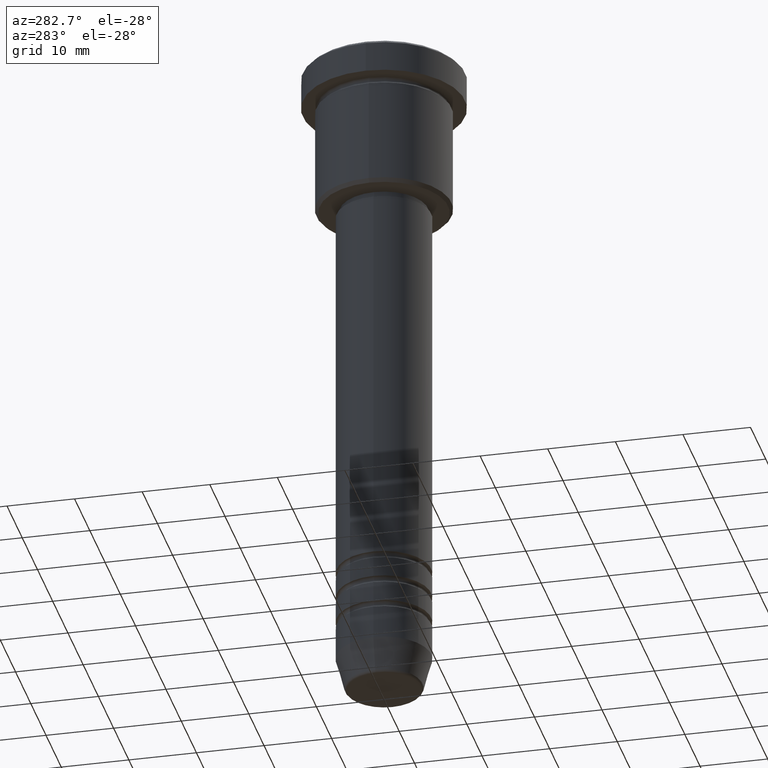
[diagram: clean part render]
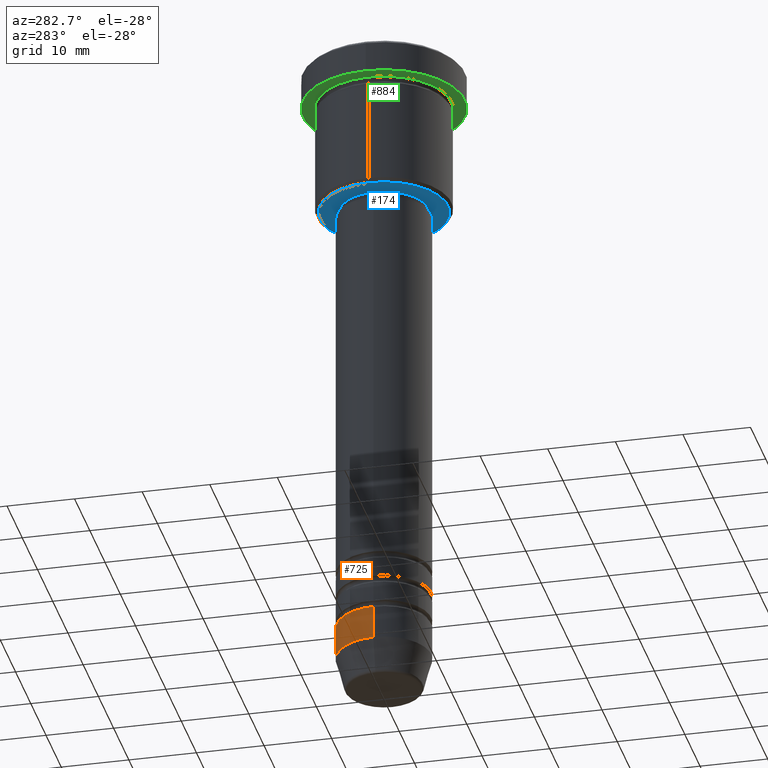
[diagram: same view with three faces highlighted in distinct colors, each labeled with its STEP entity id]
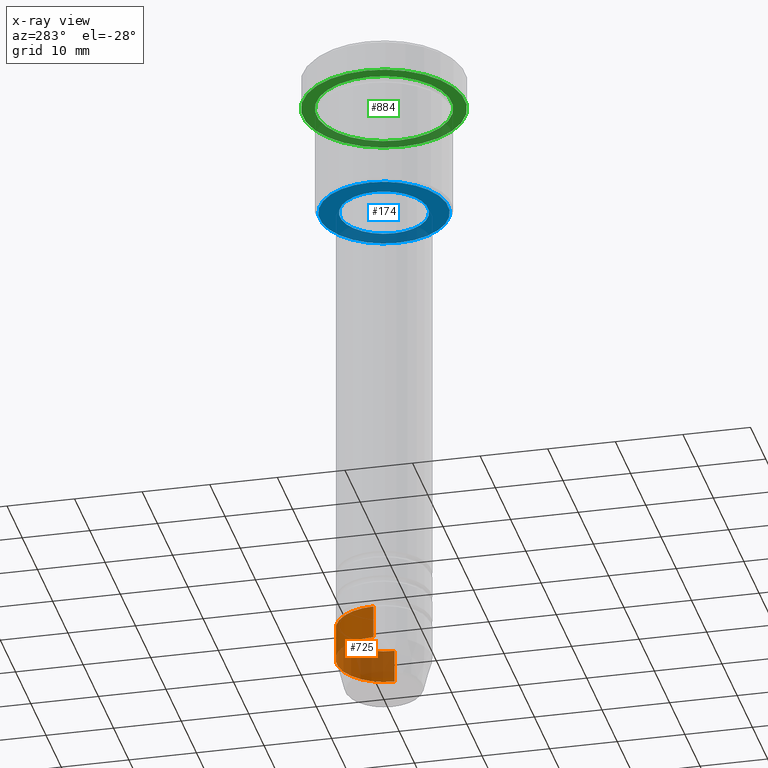
[diagram: x-ray of the same camera — body ghosted, the three highlighted faces saturated]
A machine part, auxiliary view with three faces highlighted in distinct colors.
The next image is the same camera in x-ray (body ghosted, the three faces saturated) — at least one of them is partly hidden behind the body in this view.
Their STEP definitions:

[orange] entity #725 — the highlighted cylindrical surface (partial cylindrical patch) has radius 7 mm, axis along (-0, -0, 1).
#5 = VERTEX_POINT ( 'NONE', #958 ) ;
#14 = CARTESIAN_POINT ( 'NONE',  ( 0.000000000000000000, 0.000000000000000000, -90.00000000000000000 ) ) ;
#29 = DIRECTION ( 'NONE',  ( -0.000000000000000000, -0.000000000000000000, 1.000000000000000000 ) ) ;
#79 = CARTESIAN_POINT ( 'NONE',  ( 7.000000000000000888, 0.000000000000000000, -95.00000000000000000 ) ) ;
#158 = AXIS2_PLACEMENT_3D ( 'NONE', #857, #29, #765 ) ;
#262 = CARTESIAN_POINT ( 'NONE',  ( -7.000000000000000888, 8.572527594031474176E-16, 0.000000000000000000 ) ) ;
#265 = EDGE_LOOP ( 'NONE', ( #851, #664, #712, #858 ) ) ;
#269 = CYLINDRICAL_SURFACE ( 'NONE', #503, 7.000000000000000888 ) ;
#317 = CARTESIAN_POINT ( 'NONE',  ( 7.000000000000000000, 0.000000000000000000, -90.00000000000000000 ) ) ;
#385 = EDGE_CURVE ( 'NONE', #781, #5, #735, .T. ) ;
#392 = EDGE_CURVE ( 'NONE', #737, #781, #1127, .T. ) ;
#417 = EDGE_CURVE ( 'NONE', #737, #720, #535, .T. ) ;
#459 = DIRECTION ( 'NONE',  ( -0.000000000000000000, -0.000000000000000000, 1.000000000000000000 ) ) ;
#478 = DIRECTION ( 'NONE',  ( 1.000000000000000000, 0.000000000000000000, 0.000000000000000000 ) ) ;
#503 = AXIS2_PLACEMENT_3D ( 'NONE', #1079, #459, #828 ) ;
#535 = CIRCLE ( 'NONE', #158, 7.000000000000000888 ) ;
#623 = CARTESIAN_POINT ( 'NONE',  ( -7.000000000000000888, 8.572527594031474176E-16, -95.00000000000000000 ) ) ;
#664 = ORIENTED_EDGE ( 'NONE', *, *, #713, .T. ) ;
#666 = CARTESIAN_POINT ( 'NONE',  ( 7.000000000000000888, 0.000000000000000000, 0.000000000000000000 ) ) ;
#680 = DIRECTION ( 'NONE',  ( -0.000000000000000000, -0.000000000000000000, 1.000000000000000000 ) ) ;
#712 = ORIENTED_EDGE ( 'NONE', *, *, #385, .F. ) ;
#713 = EDGE_CURVE ( 'NONE', #720, #5, #835, .T. ) ;
#720 = VERTEX_POINT ( 'NONE', #623 ) ;
#722 = FACE_OUTER_BOUND ( 'NONE', #265, .T. ) ;
#725 = ADVANCED_FACE ( 'NONE', ( #722 ), #269, .T. ) ;
#735 = CIRCLE ( 'NONE', #1051, 7.000000000000000000 ) ;
#737 = VERTEX_POINT ( 'NONE', #79 ) ;
#765 = DIRECTION ( 'NONE',  ( 1.000000000000000000, 0.000000000000000000, 0.000000000000000000 ) ) ;
#781 = VERTEX_POINT ( 'NONE', #317 ) ;
#828 = DIRECTION ( 'NONE',  ( 1.000000000000000000, 0.000000000000000000, 0.000000000000000000 ) ) ;
#831 = VECTOR ( 'NONE', #1178, 1000.000000000000000 ) ;
#835 = LINE ( 'NONE', #262, #831 ) ;
#851 = ORIENTED_EDGE ( 'NONE', *, *, #417, .T. ) ;
#857 = CARTESIAN_POINT ( 'NONE',  ( 0.000000000000000000, 0.000000000000000000, -95.00000000000000000 ) ) ;
#858 = ORIENTED_EDGE ( 'NONE', *, *, #392, .F. ) ;
#940 = DIRECTION ( 'NONE',  ( -0.000000000000000000, -0.000000000000000000, 1.000000000000000000 ) ) ;
#958 = CARTESIAN_POINT ( 'NONE',  ( -7.000000000000000000, 8.572527594031473190E-16, -90.00000000000000000 ) ) ;
#977 = VECTOR ( 'NONE', #680, 1000.000000000000000 ) ;
#1051 = AXIS2_PLACEMENT_3D ( 'NONE', #14, #940, #478 ) ;
#1079 = CARTESIAN_POINT ( 'NONE',  ( 0.000000000000000000, 0.000000000000000000, 0.000000000000000000 ) ) ;
#1127 = LINE ( 'NONE', #666, #977 ) ;
#1178 = DIRECTION ( 'NONE',  ( -0.000000000000000000, -0.000000000000000000, 1.000000000000000000 ) ) ;

[blue] entity #174 — the highlighted planar face has unit normal (0, 0, -1).
#20 = DIRECTION ( 'NONE',  ( 1.000000000000000000, 0.000000000000000000, 0.000000000000000000 ) ) ;
#87 = CARTESIAN_POINT ( 'NONE',  ( -9.499999999999994671, 1.194030629168669075E-15, -22.00000000000000000 ) ) ;
#95 = ORIENTED_EDGE ( 'NONE', *, *, #237, .T. ) ;
#135 = DIRECTION ( 'NONE',  ( -0.000000000000000000, -0.000000000000000000, 1.000000000000000000 ) ) ;
#148 = EDGE_LOOP ( 'NONE', ( #95, #985 ) ) ;
#156 = CIRCLE ( 'NONE', #945, 9.499999999999994671 ) ;
#167 = CARTESIAN_POINT ( 'NONE',  ( 0.000000000000000000, 0.000000000000000000, -22.00000000000000000 ) ) ;
#174 = ADVANCED_FACE ( 'NONE', ( #653, #812 ), #184, .T. ) ;
#178 = CIRCLE ( 'NONE', #655, 6.500000000000000000 ) ;
#184 = PLANE ( 'NONE',  #850 ) ;
#229 = VERTEX_POINT ( 'NONE', #87 ) ;
#237 = EDGE_CURVE ( 'NONE', #903, #229, #156, .T. ) ;
#246 = VERTEX_POINT ( 'NONE', #1101 ) ;
#251 = EDGE_CURVE ( 'NONE', #246, #1122, #178, .T. ) ;
#362 = ORIENTED_EDGE ( 'NONE', *, *, #251, .T. ) ;
#365 = DIRECTION ( 'NONE',  ( 0.000000000000000000, 0.000000000000000000, -1.000000000000000000 ) ) ;
#455 = DIRECTION ( 'NONE',  ( -0.000000000000000000, -0.000000000000000000, 1.000000000000000000 ) ) ;
#602 = AXIS2_PLACEMENT_3D ( 'NONE', #1118, #135, #20 ) ;
#645 = CARTESIAN_POINT ( 'NONE',  ( -6.500000000000000000, 7.960204194457795477E-16, -22.00000000000000000 ) ) ;
#653 = FACE_OUTER_BOUND ( 'NONE', #148, .T. ) ;
#655 = AXIS2_PLACEMENT_3D ( 'NONE', #921, #455, #1080 ) ;
#660 = CIRCLE ( 'NONE', #602, 6.500000000000000000 ) ;
#667 = EDGE_LOOP ( 'NONE', ( #362, #756 ) ) ;
#723 = DIRECTION ( 'NONE',  ( 0.000000000000000000, 0.000000000000000000, -1.000000000000000000 ) ) ;
#753 = EDGE_CURVE ( 'NONE', #1122, #246, #660, .T. ) ;
#756 = ORIENTED_EDGE ( 'NONE', *, *, #753, .T. ) ;
#812 = FACE_BOUND ( 'NONE', #667, .T. ) ;
#829 = CARTESIAN_POINT ( 'NONE',  ( 0.000000000000000000, 0.000000000000000000, -22.00000000000000000 ) ) ;
#834 = CIRCLE ( 'NONE', #1020, 9.499999999999994671 ) ;
#850 = AXIS2_PLACEMENT_3D ( 'NONE', #924, #723, #906 ) ;
#903 = VERTEX_POINT ( 'NONE', #1037 ) ;
#906 = DIRECTION ( 'NONE',  ( -1.000000000000000000, 0.000000000000000000, -0.000000000000000000 ) ) ;
#921 = CARTESIAN_POINT ( 'NONE',  ( 0.000000000000000000, 0.000000000000000000, -22.00000000000000000 ) ) ;
#924 = CARTESIAN_POINT ( 'NONE',  ( 0.000000000000000000, 9.999999999999998224, -22.00000000000000000 ) ) ;
#945 = AXIS2_PLACEMENT_3D ( 'NONE', #829, #365, #1174 ) ;
#985 = ORIENTED_EDGE ( 'NONE', *, *, #1128, .T. ) ;
#1020 = AXIS2_PLACEMENT_3D ( 'NONE', #167, #1177, #1078 ) ;
#1037 = CARTESIAN_POINT ( 'NONE',  ( 9.499999999999994671, 0.000000000000000000, -22.00000000000000000 ) ) ;
#1078 = DIRECTION ( 'NONE',  ( -1.000000000000000000, 0.000000000000000000, 0.000000000000000000 ) ) ;
#1080 = DIRECTION ( 'NONE',  ( 1.000000000000000000, 0.000000000000000000, 0.000000000000000000 ) ) ;
#1101 = CARTESIAN_POINT ( 'NONE',  ( 6.500000000000000000, 0.000000000000000000, -22.00000000000000000 ) ) ;
#1118 = CARTESIAN_POINT ( 'NONE',  ( 0.000000000000000000, 0.000000000000000000, -22.00000000000000000 ) ) ;
#1122 = VERTEX_POINT ( 'NONE', #645 ) ;
#1128 = EDGE_CURVE ( 'NONE', #229, #903, #834, .T. ) ;
#1174 = DIRECTION ( 'NONE',  ( -1.000000000000000000, 0.000000000000000000, 0.000000000000000000 ) ) ;
#1177 = DIRECTION ( 'NONE',  ( 0.000000000000000000, 0.000000000000000000, -1.000000000000000000 ) ) ;

[green] entity #884 — the highlighted planar face has unit normal (0, 0, -1).
#3 = AXIS2_PLACEMENT_3D ( 'NONE', #975, #968, #160 ) ;
#12 = ORIENTED_EDGE ( 'NONE', *, *, #749, .T. ) ;
#33 = DIRECTION ( 'NONE',  ( -1.000000000000000000, 0.000000000000000000, -0.000000000000000000 ) ) ;
#37 = FACE_OUTER_BOUND ( 'NONE', #217, .T. ) ;
#61 = VERTEX_POINT ( 'NONE', #137 ) ;
#126 = AXIS2_PLACEMENT_3D ( 'NONE', #449, #481, #751 ) ;
#137 = CARTESIAN_POINT ( 'NONE',  ( 10.00000000000000000, 1.224646799147353256E-15, -4.999999999999999112 ) ) ;
#160 = DIRECTION ( 'NONE',  ( 1.000000000000000000, 0.000000000000000000, 0.000000000000000000 ) ) ;
#180 = CIRCLE ( 'NONE', #678, 12.00000000000000000 ) ;
#181 = CARTESIAN_POINT ( 'NONE',  ( 0.000000000000000000, 0.000000000000000000, -5.000000000000000000 ) ) ;
#196 = EDGE_CURVE ( 'NONE', #570, #61, #201, .T. ) ;
#201 = CIRCLE ( 'NONE', #1164, 10.00000000000000000 ) ;
#217 = EDGE_LOOP ( 'NONE', ( #259, #745 ) ) ;
#259 = ORIENTED_EDGE ( 'NONE', *, *, #952, .F. ) ;
#281 = DIRECTION ( 'NONE',  ( -0.000000000000000000, -0.000000000000000000, 1.000000000000000000 ) ) ;
#302 = AXIS2_PLACEMENT_3D ( 'NONE', #395, #1030, #33 ) ;
#310 = VERTEX_POINT ( 'NONE', #1119 ) ;
#347 = CARTESIAN_POINT ( 'NONE',  ( -10.00000000000000000, 0.000000000000000000, -4.999999999999999112 ) ) ;
#390 = FACE_BOUND ( 'NONE', #477, .T. ) ;
#395 = CARTESIAN_POINT ( 'NONE',  ( 0.000000000000000000, 12.00000000000000000, -5.000000000000000000 ) ) ;
#449 = CARTESIAN_POINT ( 'NONE',  ( 0.000000000000000000, 0.000000000000000000, -5.000000000000000000 ) ) ;
#477 = EDGE_LOOP ( 'NONE', ( #708, #12 ) ) ;
#481 = DIRECTION ( 'NONE',  ( -0.000000000000000000, -0.000000000000000000, 1.000000000000000000 ) ) ;
#518 = CIRCLE ( 'NONE', #3, 12.00000000000000000 ) ;
#570 = VERTEX_POINT ( 'NONE', #347 ) ;
#678 = AXIS2_PLACEMENT_3D ( 'NONE', #181, #281, #923 ) ;
#687 = EDGE_CURVE ( 'NONE', #310, #804, #180, .T. ) ;
#708 = ORIENTED_EDGE ( 'NONE', *, *, #196, .T. ) ;
#745 = ORIENTED_EDGE ( 'NONE', *, *, #687, .F. ) ;
#748 = DIRECTION ( 'NONE',  ( -1.000000000000000000, 0.000000000000000000, 0.000000000000000000 ) ) ;
#749 = EDGE_CURVE ( 'NONE', #61, #570, #774, .T. ) ;
#751 = DIRECTION ( 'NONE',  ( -1.000000000000000000, 0.000000000000000000, 0.000000000000000000 ) ) ;
#774 = CIRCLE ( 'NONE', #126, 10.00000000000000000 ) ;
#804 = VERTEX_POINT ( 'NONE', #943 ) ;
#847 = PLANE ( 'NONE',  #302 ) ;
#884 = ADVANCED_FACE ( 'NONE', ( #390, #37 ), #847, .T. ) ;
#923 = DIRECTION ( 'NONE',  ( 1.000000000000000000, 0.000000000000000000, 0.000000000000000000 ) ) ;
#943 = CARTESIAN_POINT ( 'NONE',  ( 12.00000000000000000, 0.000000000000000000, -5.000000000000000000 ) ) ;
#952 = EDGE_CURVE ( 'NONE', #804, #310, #518, .T. ) ;
#968 = DIRECTION ( 'NONE',  ( -0.000000000000000000, -0.000000000000000000, 1.000000000000000000 ) ) ;
#975 = CARTESIAN_POINT ( 'NONE',  ( 0.000000000000000000, 0.000000000000000000, -5.000000000000000000 ) ) ;
#1014 = CARTESIAN_POINT ( 'NONE',  ( 0.000000000000000000, 0.000000000000000000, -5.000000000000000000 ) ) ;
#1030 = DIRECTION ( 'NONE',  ( 0.000000000000000000, 0.000000000000000000, -1.000000000000000000 ) ) ;
#1092 = DIRECTION ( 'NONE',  ( -0.000000000000000000, -0.000000000000000000, 1.000000000000000000 ) ) ;
#1119 = CARTESIAN_POINT ( 'NONE',  ( -12.00000000000000000, 1.469576158976823947E-15, -5.000000000000000000 ) ) ;
#1164 = AXIS2_PLACEMENT_3D ( 'NONE', #1014, #1092, #748 ) ;